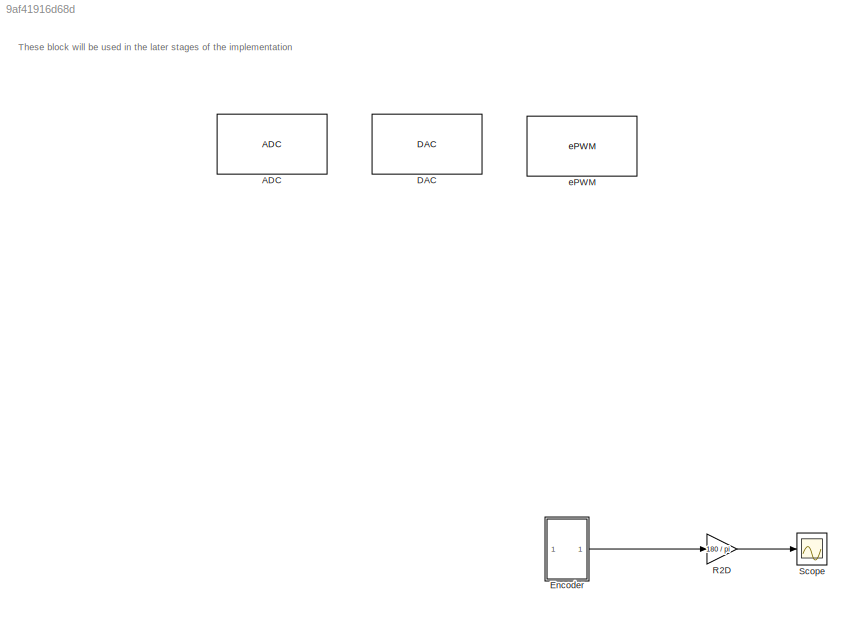
MODEL slx_9af41916d68d
KIND model
CONFIG AbsTol = auto
CONFIG EnableMultiTasking = on
CONFIG FixedStep = 1e-3
CONFIG MaxStep = auto
CONFIG MinStep = auto
CONFIG RelTol = 1e-3
CONFIG SampleTimeConstraint = Unconstrained
CONFIG SolverName = ode1
CONFIG StartTime = 0.0
CONFIG StopTime = Inf
BLOCK [Reference] ADC  REF=c2802xlib/ADC
  Commented = on
  LibrarySourceBlock = c2837xDlib/ADC
  SourceBlock = c2802xlib/ADC
  SourceType = ADC Type 3-5
  UserDataPersistent = on
BLOCK [Reference] DAC  REF=c2837xDlib/DAC
  Commented = on
  SourceBlock = c2837xDlib/DAC
  SourceType = codertarget.tic2000.blocks.DACWrite
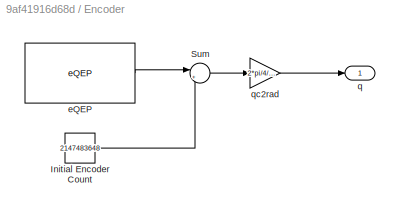
BLOCK [SubSystem] Encoder
BLOCK [Constant] Encoder/Initial Encoder Count
  Value = 2147483648
BLOCK [Sum] Encoder/Sum
  Inputs = |+-
BLOCK [Reference] Encoder/eQEP  REF=c280xlib/eQEP
  LibrarySourceBlock = c2837xDlib/eQEP
  SourceBlock = c280xlib/eQEP
  SourceType = C28x eQEP
BLOCK [Outport] Encoder/q
BLOCK [Gain] Encoder/qc2rad
  Gain = 2*pi/4/1000
BLOCK [Gain] R2D
  Gain = 180 / pi
BLOCK [Scope] Scope
  Floating = off
  NumInputPorts = 1
  ScopeSpecificationString = Simulink.scopes.TimeScopeBlockCfg('CurrentConfiguration', extmgr.ConfigurationSet(extmgr.Configuration('Core','General UI',true),extmgr.Configuration('Core','Source UI',true),extmgr.Configuration('Sources','WiredSimulink',true),extmgr.Configuration('Visuals','Time Domain',true,'SerializedDisplays',{struct('MinYLimReal','84.32001','MaxYLimReal','284.32001','YLabelReal','','MinYLimMag','84.32001','M...<+1447ch>
BLOCK [Reference] ePWM  REF=c2802xlib/ePWM
  Commented = on
  LibrarySourceBlock = c2837xDlib/ePWM
  SourceBlock = c2802xlib/ePWM
  SourceType = ePWM Type 1-4
  UserDataPersistent = on
ANNOTATION (root): These block will be used in the later stages of the implementation
LINE Encoder/Initial Encoder Count:1 -> Encoder/Sum:2
LINE Encoder/Sum:1 -> Encoder/qc2rad:1
LINE Encoder/eQEP:1 -> Encoder/Sum:1
LINE Encoder/qc2rad:1 -> Encoder/q:1
LINE Encoder:1 -> R2D:1
LINE R2D:1 -> Scope:1
